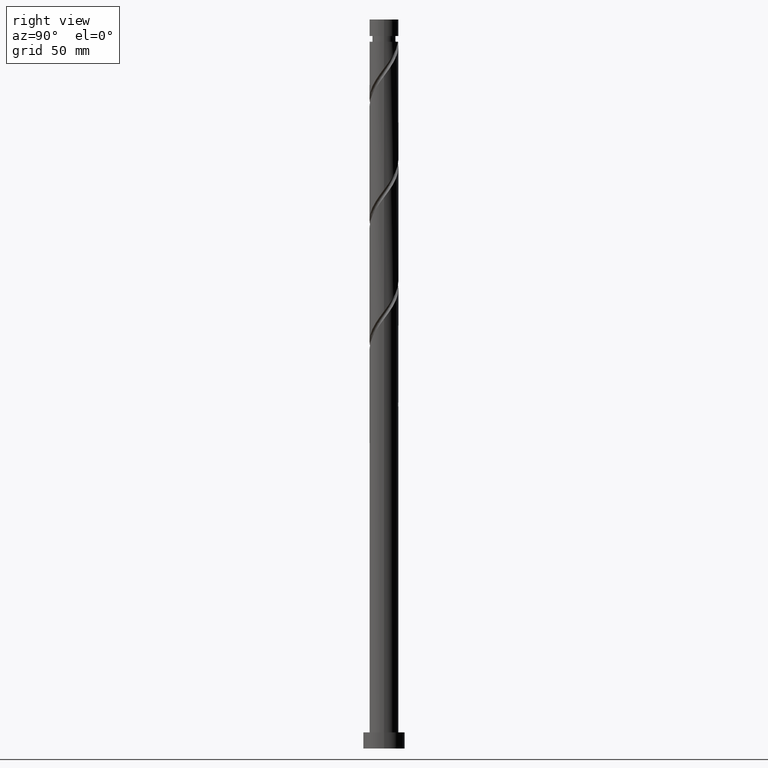
[diagram: clean part render]
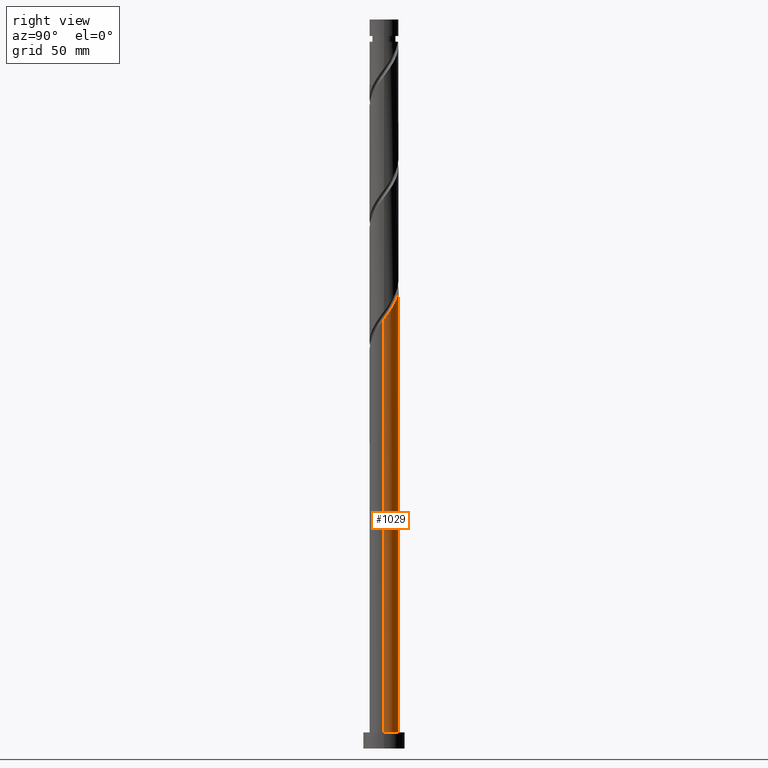
[diagram: same view with one face highlighted and labeled with its STEP entity id]
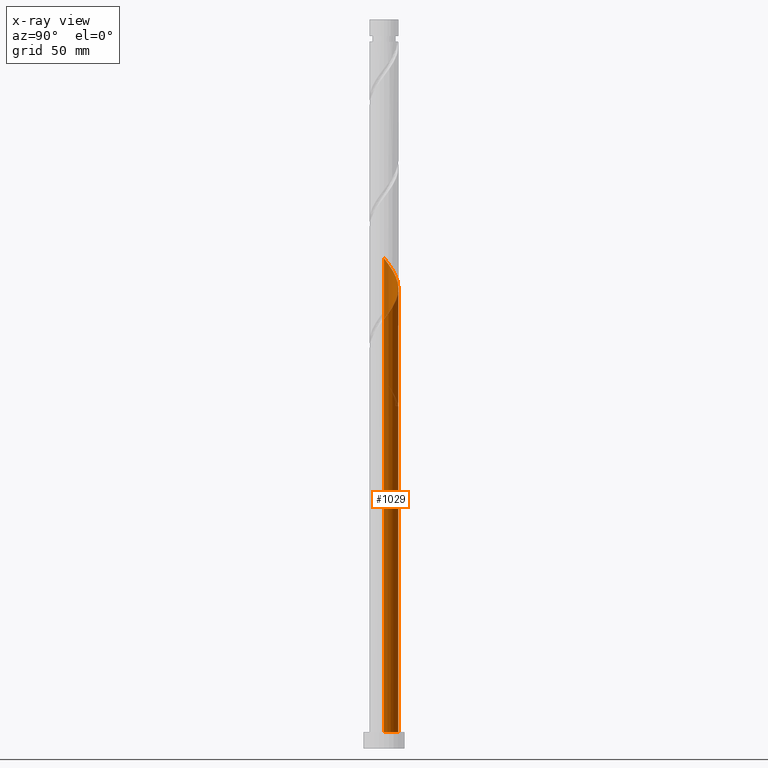
[diagram: x-ray of the same camera — body ghosted, the highlighted face saturated]
A machine part, right view. The second image highlights one B-rep face of the part: STEP entity #1029.
The next image is the same camera in x-ray: the body ghosted, the highlighted face saturated — about 0% of this face is hidden behind the body in this view.
In plain terms, the highlighted cylindrical surface (edge-blend (fillet) strip) has radius 6.25 mm, axis along (-0, -0, -1).
Its self-contained STEP definition (entity closure, byte-faithful):
#63 = ORIENTED_EDGE ( 'NONE', *, *, #536, .F. ) ;
#66 = DIRECTION ( 'NONE',  ( -0.000000000000000000, -0.000000000000000000, -1.000000000000000000 ) ) ;
#87 = CARTESIAN_POINT ( 'NONE',  ( -6.250000000000011546, 0.07520560728993622157, 211.7301393262796125 ) ) ;
#89 = CARTESIAN_POINT ( 'NONE',  ( -1.536972021111190800, 6.058070402885839201, 151.6300190924107767 ) ) ;
#94 = CARTESIAN_POINT ( 'NONE',  ( 2.846484407647080328, 5.564173480133612237, 194.7550190924107767 ) ) ;
#137 = AXIS2_PLACEMENT_3D ( 'NONE', #566, #830, #1162 ) ;
#184 = ORIENTED_EDGE ( 'NONE', *, *, #1101, .T. ) ;
#233 = CARTESIAN_POINT ( 'NONE',  ( -4.013262180099762766, 4.791265665122413253, 155.3800190924107198 ) ) ;
#238 = CARTESIAN_POINT ( 'NONE',  ( -1.243734296383276483, 6.125000000000010658, 200.3800190924108051 ) ) ;
#260 = CARTESIAN_POINT ( 'NONE',  ( -5.884895246723031548, 2.219552623526192647, 208.8175190924106630 ) ) ;
#268 = CARTESIAN_POINT ( 'NONE',  ( -3.778103783078902378, 4.978798228918804192, 151.6300190924107198 ) ) ;
#270 = CARTESIAN_POINT ( 'NONE',  ( 4.013262180099769871, 4.791265665122420359, 192.8800190924107767 ) ) ;
#279 = CARTESIAN_POINT ( 'NONE',  ( -6.058070402885848971, 1.536972021111194353, 157.2550190924107767 ) ) ;
#301 = CARTESIAN_POINT ( 'NONE',  ( -1.933856053271459041, 5.984864800371907378, 148.8175190924106914 ) ) ;
#308 = VERTEX_POINT ( 'NONE', #1145 ) ;
#318 = ORIENTED_EDGE ( 'NONE', *, *, #772, .T. ) ;
#380 = CARTESIAN_POINT ( 'NONE',  ( -6.250000000000001776, 1.634372200607126846E-15, 162.6795361703167941 ) ) ;
#385 = CARTESIAN_POINT ( 'NONE',  ( 3.473416191767966232, 5.243451713544187598, 193.8175190924107483 ) ) ;
#397 = CYLINDRICAL_SURFACE ( 'NONE', #1388, 6.250000000000000000 ) ;
#418 = CARTESIAN_POINT ( 'NONE',  ( 4.553108168431573510, 4.339079616700646902, 191.9425190924106914 ) ) ;
#448 = CARTESIAN_POINT ( 'NONE',  ( -6.250000000000009770, 4.477732056457852315E-17, 159.3305020145047024 ) ) ;
#465 = ORIENTED_EDGE ( 'NONE', *, *, #943, .F. ) ;
#527 = CARTESIAN_POINT ( 'NONE',  ( -6.231245559048660176, 0.8543914186961956148, 210.6925190924107767 ) ) ;
#529 = CARTESIAN_POINT ( 'NONE',  ( -4.978798228918796198, 3.778103783078897049, 157.2550190924107767 ) ) ;
#534 = CARTESIAN_POINT ( 'NONE',  ( 6.250000000000010658, -8.955464112915705862E-16, 185.5805020145047308 ) ) ;
#536 = EDGE_CURVE ( 'NONE', #308, #635, #1426, .T. ) ;
#553 =( BOUNDED_CURVE ( )  B_SPLINE_CURVE ( 2, ( #562, #301, #1160, #1607, #268, #856, #900, #1619, #1782, #1640, #279, #1033, #879, #1494, #448 ),
 .UNSPECIFIED., .F., .T. ) 
 B_SPLINE_CURVE_WITH_KNOTS ( ( 3, 2, 2, 2, 2, 2, 2, 3 ),
 ( 0.000000000000000000, 0.008928571428571396851, 0.01785714285714290472, 0.02678571428571430157, 0.03571428571428569843, 0.04464285714285709528, 0.05357142857142860315, 0.05453034012992193091 ),
 .UNSPECIFIED. ) 
 CURVE ( )  GEOMETRIC_REPRESENTATION_ITEM ( )  RATIONAL_B_SPLINE_CURVE ( ( 0.9090909090909321533, 0.9033747362666073588, 0.9090909090909321533, 0.9033747362666073588, 0.9090909090909321533, 0.9033747362666073588, 0.9090909090909321533, 0.9033747362666073588, 0.9090909090909321533, 0.9033747362666073588, 0.9090909090909321533, 0.9033747362666073588, 0.9090909090909321533, 0.9084770030214740499, 0.9079949616362024134 ) ) 
 REPRESENTATION_ITEM ( '' )  );
#554 = CARTESIAN_POINT ( 'NONE',  ( -5.243451713544189374, 3.473416191767964900, 206.9425190924107483 ) ) ;
#562 = CARTESIAN_POINT ( 'NONE',  ( -1.243734296383276483, 6.125000000000010658, 147.8800190924107483 ) ) ;
#566 = CARTESIAN_POINT ( 'NONE',  ( 0.000000000000000000, 0.000000000000000000, 147.8800190924107767 ) ) ;
#591 = EDGE_LOOP ( 'NONE', ( #1784, #318, #652, #741, #634, #184, #63, #465 ) ) ;
#634 = ORIENTED_EDGE ( 'NONE', *, *, #1380, .F. ) ;
#635 = VERTEX_POINT ( 'NONE', #1117 ) ;
#651 = VERTEX_POINT ( 'NONE', #1266 ) ;
#652 = ORIENTED_EDGE ( 'NONE', *, *, #1923, .T. ) ;
#673 = CARTESIAN_POINT ( 'NONE',  ( -2.575492001364306116, 5.694676544888975123, 202.2550190924107767 ) ) ;
#683 = CARTESIAN_POINT ( 'NONE',  ( -0.8543914186961930612, 6.231245559048653071, 150.6925190924107767 ) ) ;
#690 = CARTESIAN_POINT ( 'NONE',  ( -4.339079616700648678, 4.553108168431573510, 205.0675190924106914 ) ) ;
#699 = CARTESIAN_POINT ( 'NONE',  ( -0.5536125394950951462, 6.265135199628107721, 199.4425190924106914 ) ) ;
#728 = AXIS2_PLACEMENT_3D ( 'NONE', #1881, #1484, #1781 ) ;
#741 = ORIENTED_EDGE ( 'NONE', *, *, #1291, .F. ) ;
#758 = VERTEX_POINT ( 'NONE', #1256 ) ;
#759 =( BOUNDED_CURVE ( )  B_SPLINE_CURVE ( 2, ( #534, #1752, #839, #1130, #1003, #1725, #973, #418, #270, #385, #94, #1899, #1581, #846, #991, #699, #238, #982, #673, #1599, #871, #690, #1299, #554, #1741, #260, #1272, #527, #859, #87, #1465 ),
 .UNSPECIFIED., .F., .T. ) 
 B_SPLINE_CURVE_WITH_KNOTS ( ( 3, 2, 2, 2, 2, 2, 2, 2, 2, 2, 2, 2, 2, 2, 2, 3 ),
 ( 0.1795303401299223889, 0.1875000000000000000, 0.1964285714285713969, 0.2053571428571429047, 0.2142857142857143016, 0.2232142857142856984, 0.2321428571428570953, 0.2410714285714286031, 0.2500000000000000000, 0.2589285714285713969, 0.2678571428571429047, 0.2767857142857143016, 0.2857142857142856984, 0.2946428571428570953, 0.3035714285714286031, 0.3045303401299221391 ),
 .UNSPECIFIED. ) 
 CURVE ( )  GEOMETRIC_REPRESENTATION_ITEM ( )  RATIONAL_B_SPLINE_CURVE ( ( 0.9079949616362018583, 0.9039886423360657952, 0.9090909090909321533, 0.9033747362666073588, 0.9090909090909321533, 0.9033747362666073588, 0.9090909090909321533, 0.9033747362666073588, 0.9090909090909321533, 0.9033747362666073588, 0.9090909090909321533, 0.9033747362666073588, 0.9090909090909321533, 0.9033747362666073588, 0.9090909090909321533, 0.9033747362666073588, 0.9090909090909321533, 0.9033747362666073588, 0.9090909090909321533, 0.9033747362666073588, 0.9090909090909321533, 0.9033747362666073588, 0.9090909090909321533, 0.9033747362666073588, 0.9090909090909321533, 0.9033747362666073588, 0.9090909090909321533, 0.9033747362666073588, 0.9090909090909321533, 0.9084770030214739389, 0.9079949616362021914 ) ) 
 REPRESENTATION_ITEM ( '' )  );
#772 = EDGE_CURVE ( 'NONE', #878, #651, #1705, .T. ) ;
#797 = CARTESIAN_POINT ( 'NONE',  ( -3.473416191767960459, 5.243451713544183157, 154.4425190924107483 ) ) ;
#830 = DIRECTION ( 'NONE',  ( 0.000000000000000000, -0.000000000000000000, -1.000000000000000000 ) ) ;
#832 = CARTESIAN_POINT ( 'NONE',  ( -6.125000000000000888, 1.243734296383277149, 161.0050190924107483 ) ) ;
#839 = CARTESIAN_POINT ( 'NONE',  ( 6.125000000000010658, 1.243734296383277149, 187.2550190924108051 ) ) ;
#846 = CARTESIAN_POINT ( 'NONE',  ( 0.8543914186961968360, 6.231245559048660176, 197.5675190924106914 ) ) ;
#856 = CARTESIAN_POINT ( 'NONE',  ( -4.339079616700648678, 4.553108168431573510, 152.5675190924107483 ) ) ;
#859 = CARTESIAN_POINT ( 'NONE',  ( -6.248190379338386613, 0.1503894396005495959, 211.6300190924108051 ) ) ;
#871 = CARTESIAN_POINT ( 'NONE',  ( -3.778103783078902378, 4.978798228918804192, 204.1300190924107767 ) ) ;
#878 = VERTEX_POINT ( 'NONE', #1756 ) ;
#879 = CARTESIAN_POINT ( 'NONE',  ( -6.248190379338386613, 0.1503894396005495959, 159.1300190924107767 ) ) ;
#900 = CARTESIAN_POINT ( 'NONE',  ( -4.791265665122421247, 4.013262180099768983, 153.5050190924108051 ) ) ;
#943 = EDGE_CURVE ( 'NONE', #1205, #308, #1017, .T. ) ;
#958 = CARTESIAN_POINT ( 'NONE',  ( 1.243734296383278259, 6.125000000000000000, 147.8800190924107483 ) ) ;
#973 = CARTESIAN_POINT ( 'NONE',  ( 4.978798228918805080, 3.778103783078901490, 191.0050190924108051 ) ) ;
#976 = CARTESIAN_POINT ( 'NONE',  ( -4.553108168431563740, 4.339079616700646014, 156.3175190924107767 ) ) ;
#982 = CARTESIAN_POINT ( 'NONE',  ( -1.933856053271459041, 5.984864800371907378, 201.3175190924106914 ) ) ;
#984 = VERTEX_POINT ( 'NONE', #1869 ) ;
#991 = CARTESIAN_POINT ( 'NONE',  ( 0.1503894396005508449, 6.248190379338386613, 198.5050190924108051 ) ) ;
#1003 = CARTESIAN_POINT ( 'NONE',  ( 5.694676544888975123, 2.575492001364305672, 189.1300190924107767 ) ) ;
#1006 = VECTOR ( 'NONE', #1789, 1000.000000000000000 ) ;
#1007 = DIRECTION ( 'NONE',  ( -0.000000000000000000, -0.000000000000000000, -1.000000000000000000 ) ) ;
#1017 = LINE ( 'NONE', #1479, #1129 ) ;
#1029 = ADVANCED_FACE ( 'NONE', ( #1890 ), #397, .T. ) ;
#1033 = CARTESIAN_POINT ( 'NONE',  ( -6.231245559048660176, 0.8543914186961956148, 158.1925190924106914 ) ) ;
#1072 = CIRCLE ( 'NONE', #137, 6.250000000000000000 ) ;
#1101 = EDGE_CURVE ( 'NONE', #758, #635, #1072, .T. ) ;
#1117 = CARTESIAN_POINT ( 'NONE',  ( 1.243734296383278481, 6.125000000000000000, 147.8800190924107483 ) ) ;
#1124 = CARTESIAN_POINT ( 'NONE',  ( -5.984864800371902049, 1.933856053271457931, 160.0675190924107483 ) ) ;
#1129 = VECTOR ( 'NONE', #1435, 1000.000000000000000 ) ;
#1130 = CARTESIAN_POINT ( 'NONE',  ( 5.984864800371907378, 1.933856053271457931, 188.1925190924107198 ) ) ;
#1145 = CARTESIAN_POINT ( 'NONE',  ( -6.250000000000001776, 1.634372200607126649E-15, 162.6795361703167941 ) ) ;
#1160 = CARTESIAN_POINT ( 'NONE',  ( -2.575492001364306116, 5.694676544888975123, 149.7550190924107767 ) ) ;
#1162 = DIRECTION ( 'NONE',  ( -1.000000000000000000, 0.000000000000000000, 0.000000000000000000 ) ) ;
#1192 = VERTEX_POINT ( 'NONE', #1433 ) ;
#1202 = LINE ( 'NONE', #1225, #1006 ) ;
#1205 = VERTEX_POINT ( 'NONE', #1310 ) ;
#1216 = EDGE_CURVE ( 'NONE', #878, #1205, #759, .T. ) ;
#1225 = CARTESIAN_POINT ( 'NONE',  ( -6.250000000000000000, 0.000000000000000000, 315.0000000000000000 ) ) ;
#1250 = CARTESIAN_POINT ( 'NONE',  ( -5.404488289406027768, 3.217127949457149860, 158.1925190924107767 ) ) ;
#1256 = CARTESIAN_POINT ( 'NONE',  ( -1.243734296383276483, 6.125000000000010658, 147.8800190924107483 ) ) ;
#1259 = VECTOR ( 'NONE', #66, 1000.000000000000000 ) ;
#1266 = CARTESIAN_POINT ( 'NONE',  ( 6.250000000000000000, 7.654042494670957606E-16, 7.000000000000000000 ) ) ;
#1272 = CARTESIAN_POINT ( 'NONE',  ( -6.058070402885848971, 1.536972021111194353, 209.7550190924107483 ) ) ;
#1274 = CARTESIAN_POINT ( 'NONE',  ( -2.846484407647073223, 5.564173480133604244, 153.5050190924108335 ) ) ;
#1291 = EDGE_CURVE ( 'NONE', #1192, #984, #1202, .T. ) ;
#1299 = CARTESIAN_POINT ( 'NONE',  ( -4.791265665122421247, 4.013262180099768983, 206.0050190924107767 ) ) ;
#1310 = CARTESIAN_POINT ( 'NONE',  ( -6.250000000000010658, 4.477732056457852931E-17, 211.8305020145047024 ) ) ;
#1380 = EDGE_CURVE ( 'NONE', #758, #1192, #553, .T. ) ;
#1388 = AXIS2_PLACEMENT_3D ( 'NONE', #1613, #1007, #1457 ) ;
#1403 = CARTESIAN_POINT ( 'NONE',  ( 0.5536125394950969225, 6.265135199628102392, 148.8175190924107767 ) ) ;
#1426 =( BOUNDED_CURVE ( )  B_SPLINE_CURVE ( 2, ( #380, #1566, #832, #1124, #1427, #1250, #529, #976, #233, #797, #1274, #1575, #89, #683, #1828, #1403, #958 ),
 .UNSPECIFIED., .F., .T. ) 
 B_SPLINE_CURVE_WITH_KNOTS ( ( 3, 2, 2, 2, 2, 2, 2, 2, 3 ),
 ( 0.9295303401299221946, 0.9375000000000000000, 0.9464285714285713969, 0.9553571428571429047, 0.9642857142857143016, 0.9732142857142856984, 0.9821428571428570953, 0.9910714285714286031, 1.000000000000000000 ),
 .UNSPECIFIED. ) 
 CURVE ( )  GEOMETRIC_REPRESENTATION_ITEM ( )  RATIONAL_B_SPLINE_CURVE ( ( 0.9079949616361964182, 0.9039886423360596890, 0.9090909090909264911, 0.9033747362666013636, 0.9090909090909264911, 0.9033747362666013636, 0.9090909090909264911, 0.9033747362666013636, 0.9090909090909264911, 0.9033747362666013636, 0.9090909090909264911, 0.9033747362666013636, 0.9090909090909264911, 0.9033747362666013636, 0.9090909090909264911, 0.9033747362666013636, 0.9090909090909264911 ) ) 
 REPRESENTATION_ITEM ( '' )  );
#1427 = CARTESIAN_POINT ( 'NONE',  ( -5.694676544888964465, 2.575492001364303896, 159.1300190924107483 ) ) ;
#1433 = CARTESIAN_POINT ( 'NONE',  ( -6.250000000000010658, 4.477732056457852931E-17, 159.3305020145047024 ) ) ;
#1435 = DIRECTION ( 'NONE',  ( -0.000000000000000000, -0.000000000000000000, -1.000000000000000000 ) ) ;
#1457 = DIRECTION ( 'NONE',  ( -1.000000000000000000, 0.000000000000000000, 0.000000000000000000 ) ) ;
#1465 = CARTESIAN_POINT ( 'NONE',  ( -6.250000000000010658, 4.477732056457852931E-17, 211.8305020145046740 ) ) ;
#1479 = CARTESIAN_POINT ( 'NONE',  ( -6.250000000000000000, 0.000000000000000000, 315.0000000000000000 ) ) ;
#1484 = DIRECTION ( 'NONE',  ( 0.000000000000000000, 0.000000000000000000, 1.000000000000000000 ) ) ;
#1494 = CARTESIAN_POINT ( 'NONE',  ( -6.250000000000009770, 0.07520560728995252797, 159.2301393262796410 ) ) ;
#1566 = CARTESIAN_POINT ( 'NONE',  ( -6.250000000000000000, 0.6281486345370181912, 161.8412650913532218 ) ) ;
#1575 = CARTESIAN_POINT ( 'NONE',  ( -2.219552623526188651, 5.884895246723026219, 152.5675190924107767 ) ) ;
#1581 = CARTESIAN_POINT ( 'NONE',  ( 1.536972021111196129, 6.058070402885848971, 196.6300190924107767 ) ) ;
#1599 = CARTESIAN_POINT ( 'NONE',  ( -3.217127949457153413, 5.404488289406035761, 203.1925190924106914 ) ) ;
#1607 = CARTESIAN_POINT ( 'NONE',  ( -3.217127949457153413, 5.404488289406035761, 150.6925190924107483 ) ) ;
#1613 = CARTESIAN_POINT ( 'NONE',  ( 0.000000000000000000, 0.000000000000000000, 315.0000000000000000 ) ) ;
#1619 = CARTESIAN_POINT ( 'NONE',  ( -5.243451713544189374, 3.473416191767964900, 154.4425190924107483 ) ) ;
#1640 = CARTESIAN_POINT ( 'NONE',  ( -5.884895246723031548, 2.219552623526192647, 156.3175190924107483 ) ) ;
#1705 = LINE ( 'NONE', #1711, #1259 ) ;
#1711 = CARTESIAN_POINT ( 'NONE',  ( 6.250000000000000000, 7.654042494670957606E-16, 315.0000000000000000 ) ) ;
#1725 = CARTESIAN_POINT ( 'NONE',  ( 5.404488289406035761, 3.217127949457151637, 190.0675190924107767 ) ) ;
#1741 = CARTESIAN_POINT ( 'NONE',  ( -5.564173480133613126, 2.846484407647079884, 207.8800190924107767 ) ) ;
#1752 = CARTESIAN_POINT ( 'NONE',  ( 6.250000000000005329, 0.6281486345370319579, 186.4187730934683600 ) ) ;
#1756 = CARTESIAN_POINT ( 'NONE',  ( 6.250000000000011546, -8.955464112915705862E-16, 185.5805020145047308 ) ) ;
#1781 = DIRECTION ( 'NONE',  ( 1.000000000000000000, 0.000000000000000000, 0.000000000000000000 ) ) ;
#1782 = CARTESIAN_POINT ( 'NONE',  ( -5.564173480133613126, 2.846484407647079884, 155.3800190924107483 ) ) ;
#1784 = ORIENTED_EDGE ( 'NONE', *, *, #1216, .F. ) ;
#1789 = DIRECTION ( 'NONE',  ( -0.000000000000000000, -0.000000000000000000, -1.000000000000000000 ) ) ;
#1828 = CARTESIAN_POINT ( 'NONE',  ( -0.1503894396005480971, 6.248190379338377731, 149.7550190924108051 ) ) ;
#1846 = CIRCLE ( 'NONE', #728, 6.250000000000000000 ) ;
#1869 = CARTESIAN_POINT ( 'NONE',  ( -6.250000000000000000, 0.000000000000000000, 7.000000000000000000 ) ) ;
#1881 = CARTESIAN_POINT ( 'NONE',  ( 0.000000000000000000, 0.000000000000000000, 7.000000000000000000 ) ) ;
#1890 = FACE_OUTER_BOUND ( 'NONE', #591, .T. ) ;
#1899 = CARTESIAN_POINT ( 'NONE',  ( 2.219552623526193980, 5.884895246723031548, 195.6925190924107198 ) ) ;
#1923 = EDGE_CURVE ( 'NONE', #651, #984, #1846, .T. ) ;